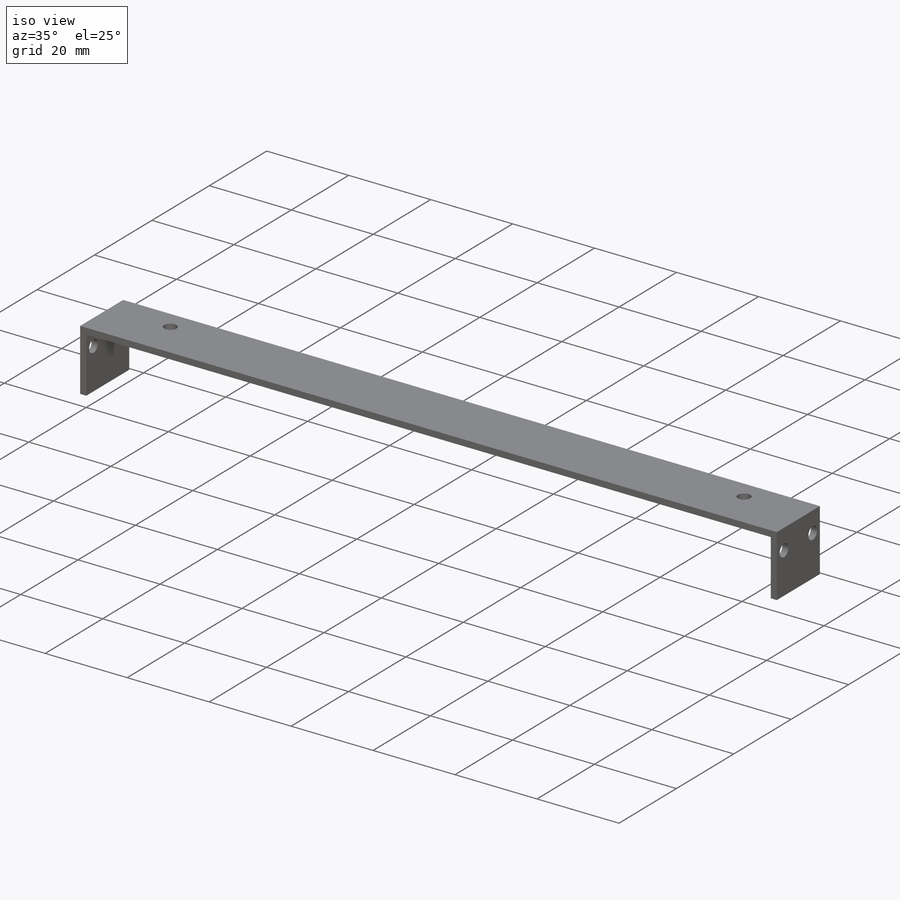
[diagram: iso view]
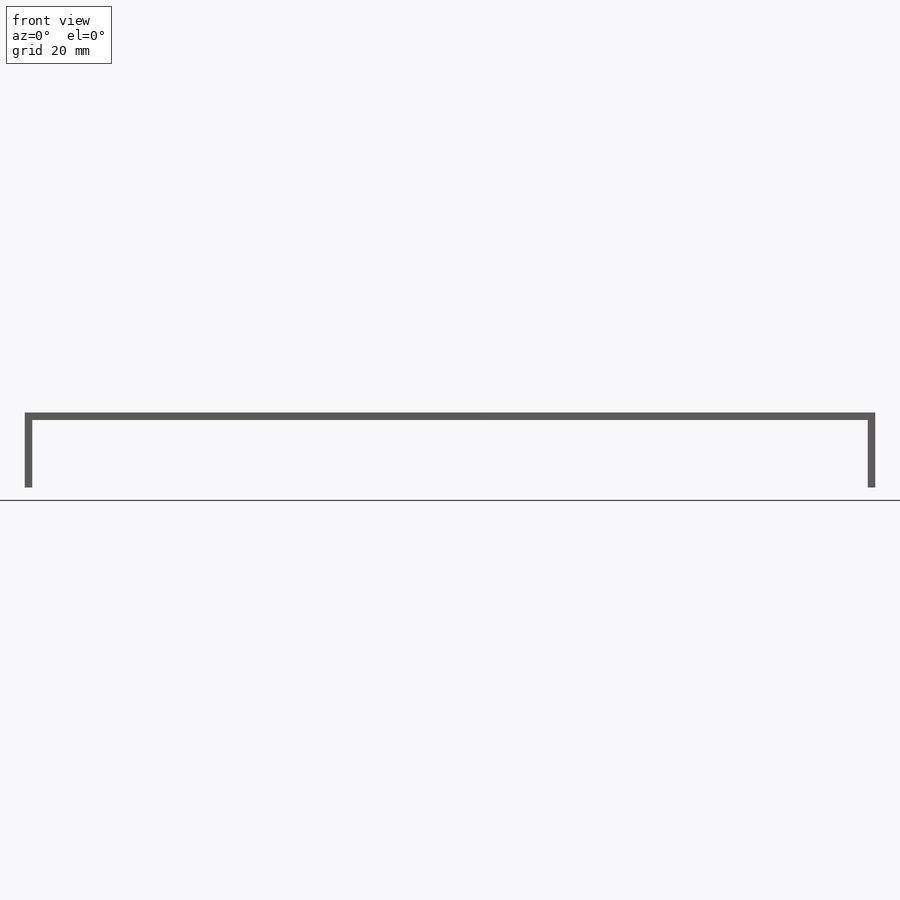
[diagram: front view]
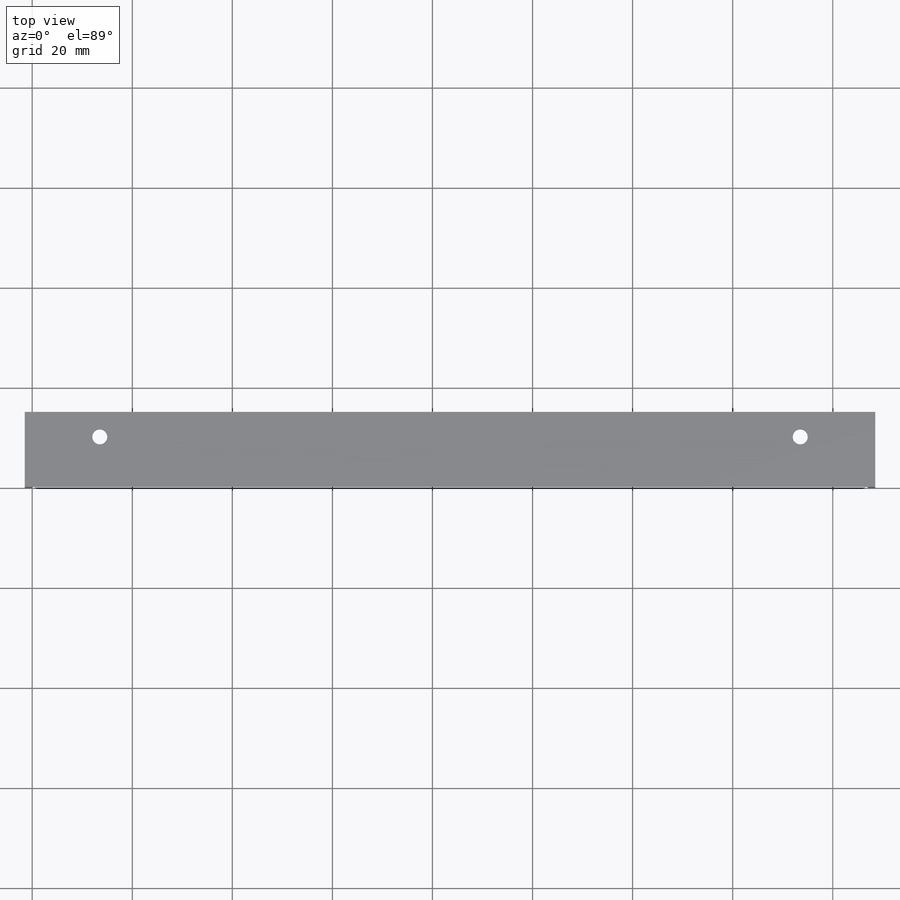
[diagram: top view]
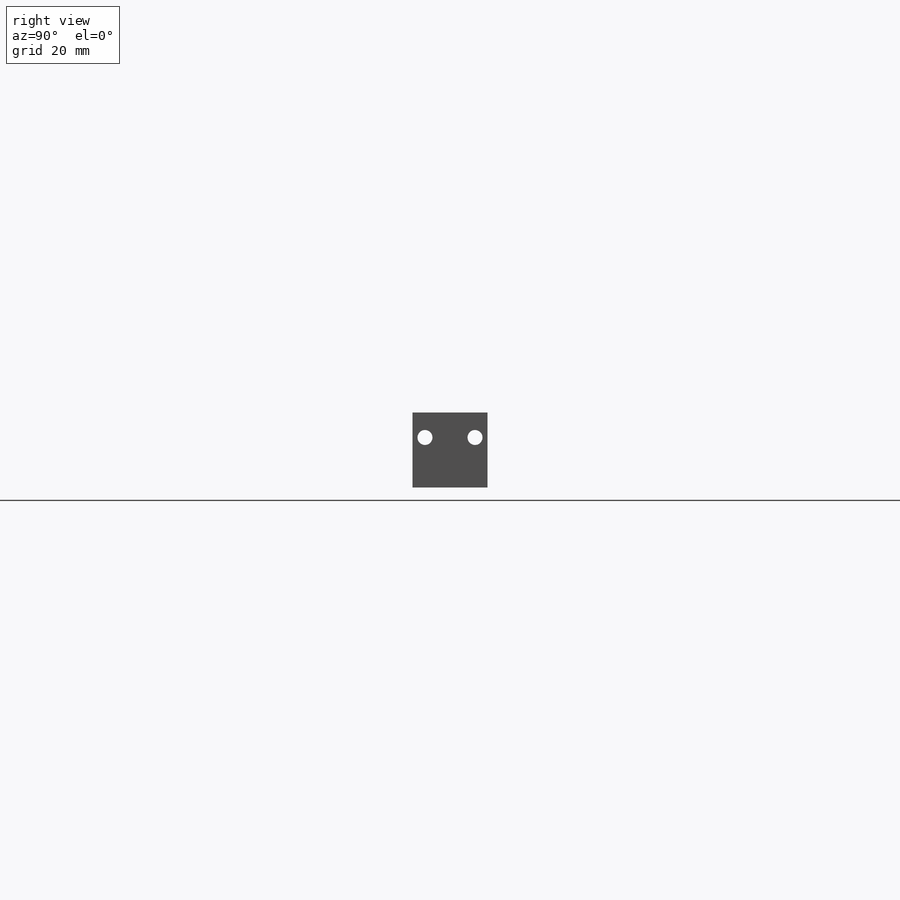
[diagram: right view]
SOLIDWORKS PART (.sldprt)
format: sldprt  version: not decoded by parser v0  size: 187,392 bytes
history: native  units: mm
features: sketch x5, extrude x3, cut_extrude x2, material x1 (+13 scaffold rows collapsed)
feature tree (24):
  scaffold x13  (default folders/planes/origin — collapsed)
  material  "Material <not specified>"
  sketch  "Sketch1"  dims[D1=15.0mm D2=167.0mm]
  extrude  "Boss-Extrude1"  Depth=1.5mm
  sketch  "Sketch2"  dims[D1=15.0mm D2=15.0mm]
  extrude  "Boss-Extrude2"  Depth=1.5mm
  sketch  "Sketch3"  dims[D1=15.0mm D2=15.0mm]
  extrude  "Boss-Extrude3"  Depth=1.5mm
  sketch  "Sketch4"  dims[c1.D1=0.0mm c1.D2=~14.497671mm c2.D2=90.0deg c3.D2=15.0mm]
  sketch  "Sketch5"  dims[D1=2.5mm D2=5.0mm D3=5.0mm D4=10.0mm]
  cut_extrude  "Cut-Extrude1"  Depth=10000mm
  cut_extrude  "Cut-Extrude2"  Depth=10000mm
decode coverage: 10 of 10 modeling features carry decoded parameters
note: ~ marks probable driven/reference dimensions
note: suppression state not decoded; provenance and decode notes live in map.json
